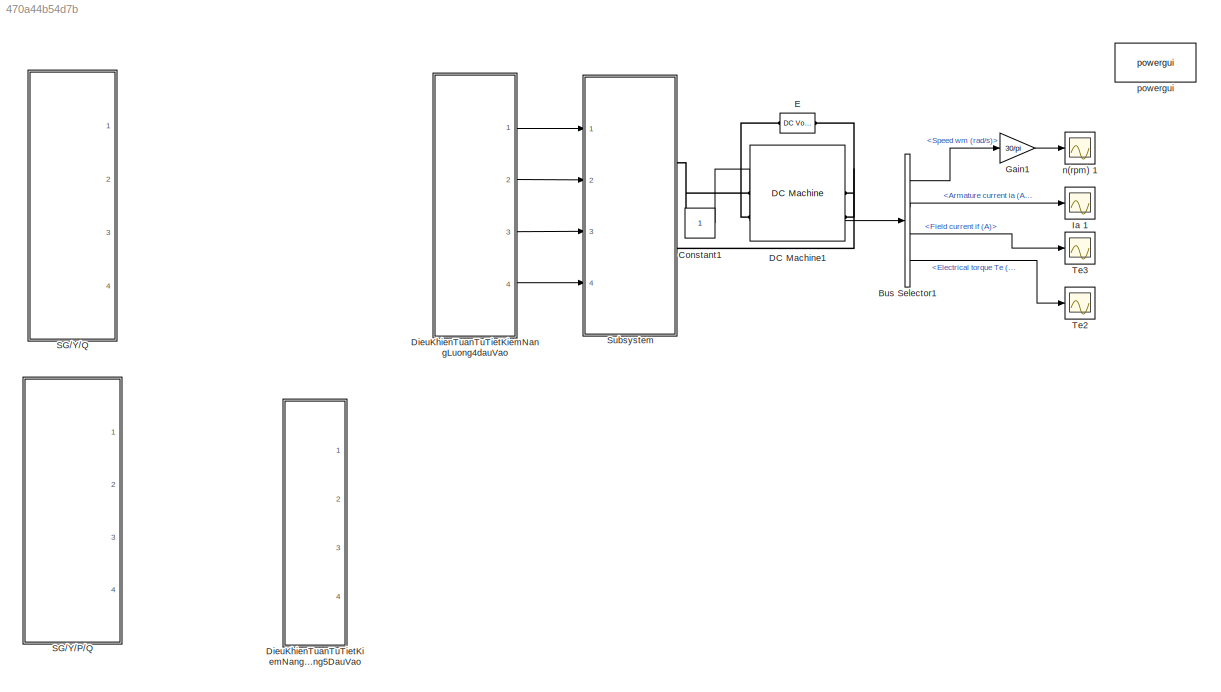
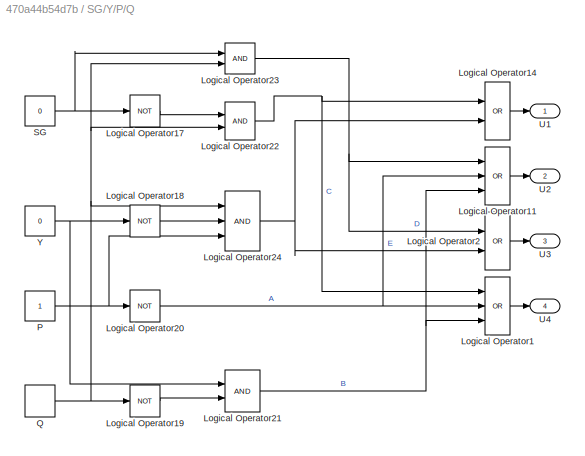
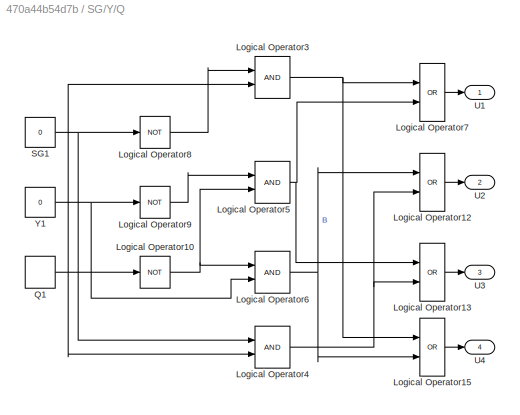
MODEL slx_470a44b54d7b
KIND model
CONFIG AbsTol = auto
CONFIG EnableMultiTasking = off
CONFIG FixedStep = auto
CONFIG MaxStep = auto
CONFIG MinStep = auto
CONFIG RelTol = 1e-3
CONFIG SampleTimeConstraint = Unconstrained
CONFIG Solver = VariableStepAuto
CONFIG SolverName = VariableStepAuto
CONFIG StartTime = 0.0
CONFIG StopTime = 10
BLOCK [BusSelector] Bus Selector1
  OutputAsBus = off
  OutputSignals = Speed wm (rad/s),Armature current ia (A),Field current if (A),Electrical torque Te (n m)
  Ports = [1, 4]
BLOCK [Constant] Constant1
BLOCK [Reference] DC Machine1  REF=powerlib/Machines/DC Machine
  Ports = [1, 1, 0, 0, 0, 2, 2]
  SourceBlock = powerlib/Machines/DC Machine
  SourceProductBaseCode = PS
  SourceProductName = Simscape Power Systems
  SourceType = DC machine
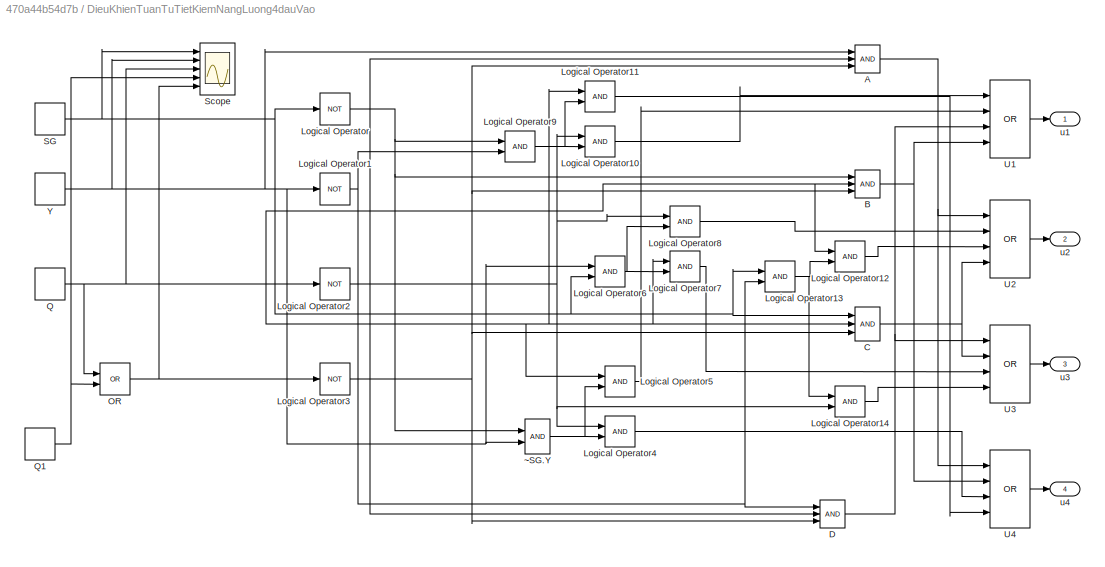
BLOCK [SubSystem] DieuKhienTuanTuTietKiemNangLuong4dauVao 
  Ports = [0, 4]
  RequestExecContextInheritance = off
BLOCK [Logic] DieuKhienTuanTuTietKiemNangLuong4dauVao /A
  AllPortsSameDT = off
  Inputs = 3
  OutDataTypeStr = boolean
  Ports = [3, 1]
BLOCK [Logic] DieuKhienTuanTuTietKiemNangLuong4dauVao /B
  AllPortsSameDT = off
  Inputs = 3
  OutDataTypeStr = boolean
  Ports = [3, 1]
BLOCK [Logic] DieuKhienTuanTuTietKiemNangLuong4dauVao /C
  AllPortsSameDT = off
  Inputs = 3
  OutDataTypeStr = boolean
  Ports = [3, 1]
BLOCK [Logic] DieuKhienTuanTuTietKiemNangLuong4dauVao /D
  AllPortsSameDT = off
  Inputs = 3
  OutDataTypeStr = boolean
  Ports = [3, 1]
BLOCK [Logic] DieuKhienTuanTuTietKiemNangLuong4dauVao /Logical Operator
  AllPortsSameDT = off
  Operator = NOT
  OutDataTypeStr = boolean
  Ports = [1, 1]
BLOCK [Logic] DieuKhienTuanTuTietKiemNangLuong4dauVao /Logical Operator1
  AllPortsSameDT = off
  Operator = NOT
  OutDataTypeStr = boolean
  Ports = [1, 1]
BLOCK [Logic] DieuKhienTuanTuTietKiemNangLuong4dauVao /Logical Operator10
  AllPortsSameDT = off
  OutDataTypeStr = boolean
  Ports = [2, 1]
BLOCK [Logic] DieuKhienTuanTuTietKiemNangLuong4dauVao /Logical Operator11
  AllPortsSameDT = off
  OutDataTypeStr = boolean
  Ports = [2, 1]
BLOCK [Logic] DieuKhienTuanTuTietKiemNangLuong4dauVao /Logical Operator12
  AllPortsSameDT = off
  OutDataTypeStr = boolean
  Ports = [2, 1]
BLOCK [Logic] DieuKhienTuanTuTietKiemNangLuong4dauVao /Logical Operator13
  AllPortsSameDT = off
  OutDataTypeStr = boolean
  Ports = [2, 1]
BLOCK [Logic] DieuKhienTuanTuTietKiemNangLuong4dauVao /Logical Operator14
  AllPortsSameDT = off
  OutDataTypeStr = boolean
  Ports = [2, 1]
BLOCK [Logic] DieuKhienTuanTuTietKiemNangLuong4dauVao /Logical Operator2
  AllPortsSameDT = off
  Operator = NOT
  OutDataTypeStr = boolean
  Ports = [1, 1]
BLOCK [Logic] DieuKhienTuanTuTietKiemNangLuong4dauVao /Logical Operator3
  AllPortsSameDT = off
  Operator = NOT
  OutDataTypeStr = boolean
  Ports = [1, 1]
BLOCK [Logic] DieuKhienTuanTuTietKiemNangLuong4dauVao /Logical Operator4
  AllPortsSameDT = off
  OutDataTypeStr = boolean
  Ports = [2, 1]
BLOCK [Logic] DieuKhienTuanTuTietKiemNangLuong4dauVao /Logical Operator5
  AllPortsSameDT = off
  OutDataTypeStr = boolean
  Ports = [2, 1]
BLOCK [Logic] DieuKhienTuanTuTietKiemNangLuong4dauVao /Logical Operator6
  AllPortsSameDT = off
  OutDataTypeStr = boolean
  Ports = [2, 1]
BLOCK [Logic] DieuKhienTuanTuTietKiemNangLuong4dauVao /Logical Operator7
  AllPortsSameDT = off
  OutDataTypeStr = boolean
  Ports = [2, 1]
BLOCK [Logic] DieuKhienTuanTuTietKiemNangLuong4dauVao /Logical Operator8
  AllPortsSameDT = off
  OutDataTypeStr = boolean
  Ports = [2, 1]
BLOCK [Logic] DieuKhienTuanTuTietKiemNangLuong4dauVao /Logical Operator9
  AllPortsSameDT = off
  OutDataTypeStr = boolean
  Ports = [2, 1]
BLOCK [Logic] DieuKhienTuanTuTietKiemNangLuong4dauVao /OR
  AllPortsSameDT = off
  IconShape = distinctive
  Operator = OR
  OutDataTypeStr = boolean
  Ports = [2, 1]
BLOCK [DiscretePulseGenerator] DieuKhienTuanTuTietKiemNangLuong4dauVao /Q
  Period = 0.002
  Ports = [0, 1]
  PulseType = Time based
  PulseWidth = 70
BLOCK [DiscretePulseGenerator] DieuKhienTuanTuTietKiemNangLuong4dauVao /Q1
  Period = 0.002
  PhaseDelay = 0.0022
  Ports = [0, 1]
  PulseType = Time based
  PulseWidth = 70
BLOCK [DiscretePulseGenerator] DieuKhienTuanTuTietKiemNangLuong4dauVao /SG
  Period = 0.008
  PhaseDelay = 0.008
  Ports = [0, 1]
  PulseType = Time based
  PulseWidth = 50
BLOCK [Scope] DieuKhienTuanTuTietKiemNangLuong4dauVao /Scope
  Floating = off
  NumInputPorts = 5
  Ports = [5]
  ScopeSpecificationString = Simulink.scopes.TimeScopeBlockCfg('CurrentConfiguration', extmgr.ConfigurationSet(extmgr.Configuration('Core','General UI',true),extmgr.Configuration('Core','Source UI',true),extmgr.Configuration('Sources','WiredSimulink',true,'DataLoggingVariableName','ScopeData1'),extmgr.Configuration('Visuals','Time Domain',true,'SerializedDisplays',{struct('MinYLimReal','-0.125','MaxYLimReal','1.08362','YLabel...<+6185ch>
BLOCK [Logic] DieuKhienTuanTuTietKiemNangLuong4dauVao /U1
  AllPortsSameDT = off
  Inputs = 4
  Operator = OR
  OutDataTypeStr = boolean
  Ports = [4, 1]
BLOCK [Logic] DieuKhienTuanTuTietKiemNangLuong4dauVao /U2
  AllPortsSameDT = off
  Inputs = 4
  Operator = OR
  OutDataTypeStr = boolean
  Ports = [4, 1]
BLOCK [Logic] DieuKhienTuanTuTietKiemNangLuong4dauVao /U3
  AllPortsSameDT = off
  Inputs = 4
  Operator = OR
  OutDataTypeStr = boolean
  Ports = [4, 1]
BLOCK [Logic] DieuKhienTuanTuTietKiemNangLuong4dauVao /U4
  AllPortsSameDT = off
  Inputs = 4
  Operator = OR
  OutDataTypeStr = boolean
  Ports = [4, 1]
BLOCK [DiscretePulseGenerator] DieuKhienTuanTuTietKiemNangLuong4dauVao /Y
  Period = 0.004
  PhaseDelay = 0.002
  Ports = [0, 1]
  PulseType = Time based
  PulseWidth = 50
BLOCK [Outport] DieuKhienTuanTuTietKiemNangLuong4dauVao /u1
  IconDisplay = Port number
BLOCK [Outport] DieuKhienTuanTuTietKiemNangLuong4dauVao /u2 
  IconDisplay = Port number
  Port = 2
BLOCK [Outport] DieuKhienTuanTuTietKiemNangLuong4dauVao /u3
  IconDisplay = Port number
  Port = 3
BLOCK [Outport] DieuKhienTuanTuTietKiemNangLuong4dauVao /u4
  IconDisplay = Port number
  Port = 4
BLOCK [Logic] DieuKhienTuanTuTietKiemNangLuong4dauVao /~SG.Y
  AllPortsSameDT = off
  OutDataTypeStr = boolean
  Ports = [2, 1]
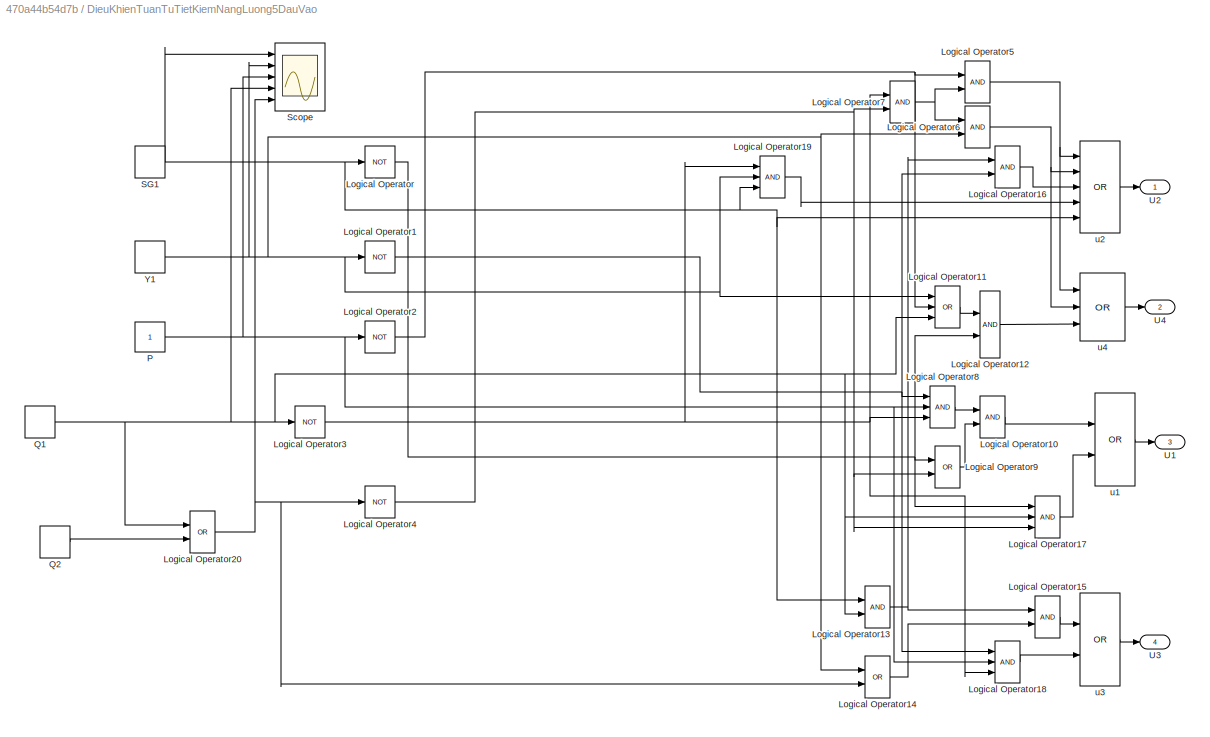
BLOCK [SubSystem] DieuKhienTuanTuTietKiemNangLuong5DauVao 
  Ports = [0, 4]
  RequestExecContextInheritance = off
BLOCK [Logic] DieuKhienTuanTuTietKiemNangLuong5DauVao /Logical Operator
  AllPortsSameDT = off
  Operator = NOT
  OutDataTypeStr = boolean
  Ports = [1, 1]
BLOCK [Logic] DieuKhienTuanTuTietKiemNangLuong5DauVao /Logical Operator1
  AllPortsSameDT = off
  Operator = NOT
  OutDataTypeStr = boolean
  Ports = [1, 1]
BLOCK [Logic] DieuKhienTuanTuTietKiemNangLuong5DauVao /Logical Operator10
  AllPortsSameDT = off
  OutDataTypeStr = boolean
  Ports = [2, 1]
BLOCK [Logic] DieuKhienTuanTuTietKiemNangLuong5DauVao /Logical Operator11
  AllPortsSameDT = off
  Inputs = 3
  Operator = OR
  OutDataTypeStr = boolean
  Ports = [3, 1]
BLOCK [Logic] DieuKhienTuanTuTietKiemNangLuong5DauVao /Logical Operator12
  AllPortsSameDT = off
  OutDataTypeStr = boolean
  Ports = [2, 1]
BLOCK [Logic] DieuKhienTuanTuTietKiemNangLuong5DauVao /Logical Operator13
  AllPortsSameDT = off
  OutDataTypeStr = boolean
  Ports = [2, 1]
BLOCK [Logic] DieuKhienTuanTuTietKiemNangLuong5DauVao /Logical Operator14
  AllPortsSameDT = off
  Operator = OR
  OutDataTypeStr = boolean
  Ports = [2, 1]
BLOCK [Logic] DieuKhienTuanTuTietKiemNangLuong5DauVao /Logical Operator15
  AllPortsSameDT = off
  OutDataTypeStr = boolean
  Ports = [2, 1]
BLOCK [Logic] DieuKhienTuanTuTietKiemNangLuong5DauVao /Logical Operator16
  AllPortsSameDT = off
  OutDataTypeStr = boolean
  Ports = [2, 1]
BLOCK [Logic] DieuKhienTuanTuTietKiemNangLuong5DauVao /Logical Operator17
  AllPortsSameDT = off
  Inputs = 3
  OutDataTypeStr = boolean
  Ports = [3, 1]
BLOCK [Logic] DieuKhienTuanTuTietKiemNangLuong5DauVao /Logical Operator18
  AllPortsSameDT = off
  Inputs = 3
  OutDataTypeStr = boolean
  Ports = [3, 1]
BLOCK [Logic] DieuKhienTuanTuTietKiemNangLuong5DauVao /Logical Operator19
  AllPortsSameDT = off
  Inputs = 3
  OutDataTypeStr = boolean
  Ports = [3, 1]
BLOCK [Logic] DieuKhienTuanTuTietKiemNangLuong5DauVao /Logical Operator2
  AllPortsSameDT = off
  Operator = NOT
  OutDataTypeStr = boolean
  Ports = [1, 1]
BLOCK [Logic] DieuKhienTuanTuTietKiemNangLuong5DauVao /Logical Operator20
  AllPortsSameDT = off
  Operator = OR
  OutDataTypeStr = boolean
  Ports = [2, 1]
BLOCK [Logic] DieuKhienTuanTuTietKiemNangLuong5DauVao /Logical Operator3
  AllPortsSameDT = off
  Operator = NOT
  OutDataTypeStr = boolean
  Ports = [1, 1]
BLOCK [Logic] DieuKhienTuanTuTietKiemNangLuong5DauVao /Logical Operator4
  AllPortsSameDT = off
  Operator = NOT
  OutDataTypeStr = boolean
  Ports = [1, 1]
BLOCK [Logic] DieuKhienTuanTuTietKiemNangLuong5DauVao /Logical Operator5
  AllPortsSameDT = off
  OutDataTypeStr = boolean
  Ports = [2, 1]
BLOCK [Logic] DieuKhienTuanTuTietKiemNangLuong5DauVao /Logical Operator6
  AllPortsSameDT = off
  OutDataTypeStr = boolean
  Ports = [2, 1]
BLOCK [Logic] DieuKhienTuanTuTietKiemNangLuong5DauVao /Logical Operator7
  AllPortsSameDT = off
  OutDataTypeStr = boolean
  Ports = [2, 1]
BLOCK [Logic] DieuKhienTuanTuTietKiemNangLuong5DauVao /Logical Operator8
  AllPortsSameDT = off
  Inputs = 3
  OutDataTypeStr = boolean
  Ports = [3, 1]
BLOCK [Logic] DieuKhienTuanTuTietKiemNangLuong5DauVao /Logical Operator9
  AllPortsSameDT = off
  Operator = OR
  OutDataTypeStr = boolean
  Ports = [2, 1]
BLOCK [Constant] DieuKhienTuanTuTietKiemNangLuong5DauVao /P
BLOCK [DiscretePulseGenerator] DieuKhienTuanTuTietKiemNangLuong5DauVao /Q1
  Period = 0.002
  Ports = [0, 1]
  PulseType = Time based
  PulseWidth = 70
BLOCK [DiscretePulseGenerator] DieuKhienTuanTuTietKiemNangLuong5DauVao /Q2
  Period = 0.002
  PhaseDelay = 0.0021
  Ports = [0, 1]
  PulseType = Time based
  PulseWidth = 70
BLOCK [DiscretePulseGenerator] DieuKhienTuanTuTietKiemNangLuong5DauVao /SG1
  Period = 0.008
  PhaseDelay = 0.008
  Ports = [0, 1]
  PulseType = Time based
  PulseWidth = 50
BLOCK [Scope] DieuKhienTuanTuTietKiemNangLuong5DauVao /Scope
  Floating = off
  NumInputPorts = 5
  Ports = [5]
  ScopeSpecificationString = Simulink.scopes.TimeScopeBlockCfg('CurrentConfiguration', extmgr.ConfigurationSet(extmgr.Configuration('Core','General UI',true),extmgr.Configuration('Core','Source UI',true),extmgr.Configuration('Sources','WiredSimulink',true,'DataLoggingVariableName','ScopeData2'),extmgr.Configuration('Visuals','Time Domain',true,'SerializedDisplays',{struct('MinYLimReal','-0.125','MaxYLimReal','1.08362','YLabel...<+3498ch>
BLOCK [Outport] DieuKhienTuanTuTietKiemNangLuong5DauVao /U1
  IconDisplay = Port number
  Port = 3
BLOCK [Outport] DieuKhienTuanTuTietKiemNangLuong5DauVao /U2
  IconDisplay = Port number
BLOCK [Outport] DieuKhienTuanTuTietKiemNangLuong5DauVao /U3
  IconDisplay = Port number
  Port = 4
BLOCK [Outport] DieuKhienTuanTuTietKiemNangLuong5DauVao /U4
  IconDisplay = Port number
  Port = 2
BLOCK [DiscretePulseGenerator] DieuKhienTuanTuTietKiemNangLuong5DauVao /Y1
  Period = 0.004
  PhaseDelay = 0.002
  Ports = [0, 1]
  PulseType = Time based
  PulseWidth = 50
BLOCK [Logic] DieuKhienTuanTuTietKiemNangLuong5DauVao /u1
  AllPortsSameDT = off
  Operator = OR
  OutDataTypeStr = boolean
  Ports = [2, 1]
BLOCK [Logic] DieuKhienTuanTuTietKiemNangLuong5DauVao /u2
  AllPortsSameDT = off
  Inputs = 5
  Operator = OR
  OutDataTypeStr = boolean
  Ports = [5, 1]
BLOCK [Logic] DieuKhienTuanTuTietKiemNangLuong5DauVao /u3
  AllPortsSameDT = off
  Operator = OR
  OutDataTypeStr = boolean
  Ports = [2, 1]
BLOCK [Logic] DieuKhienTuanTuTietKiemNangLuong5DauVao /u4
  AllPortsSameDT = off
  Inputs = 3
  Operator = OR
  OutDataTypeStr = boolean
  Ports = [3, 1]
BLOCK [Reference] E  REF=powerlib/Electrical
Sources/DC Voltage Source
  Ports = [0, 0, 0, 0, 0, 1, 1]
  SourceBlock = powerlib/Electrical\nSources/DC Voltage Source
  SourceProductBaseCode = PS
  SourceProductName = Simscape Power Systems
  SourceType = DC Voltage Source
BLOCK [Gain] Gain1
  Gain = 30/pi
  OutDataTypeStr = Inherit: Inherit via internal rule
  ParamDataTypeStr = Inherit: Inherit via internal rule
  SaturateOnIntegerOverflow = off
BLOCK [Scope] Ia 1
  Floating = off
  NumInputPorts = 1
  Ports = [1]
  ScopeSpecificationString = Simulink.scopes.TimeScopeBlockCfg('CurrentConfiguration', extmgr.ConfigurationSet(extmgr.Configuration('Core','General UI',true),extmgr.Configuration('Core','Source UI',true),extmgr.Configuration('Sources','WiredSimulink',true,'DataLoggingVariableName','ScopeData1'),extmgr.Configuration('Visuals','Time Domain',true,'SerializedDisplays',{struct('MinYLimReal','-1.91047','MaxYLimReal','17.19427','YLa...<+1420ch>
BLOCK [SubSystem] SG//Y//P//Q
  Ports = [0, 4]
  RequestExecContextInheritance = off
BLOCK [Logic] SG//Y//P//Q/Logical Operator1
  AllPortsSameDT = off
  Inputs = 3
  Operator = OR
  OutDataTypeStr = boolean
  Ports = [3, 1]
BLOCK [Logic] SG//Y//P//Q/Logical Operator11
  AllPortsSameDT = off
  Inputs = 3
  Operator = OR
  OutDataTypeStr = boolean
  Ports = [3, 1]
BLOCK [Logic] SG//Y//P//Q/Logical Operator14
  AllPortsSameDT = off
  Operator = OR
  OutDataTypeStr = boolean
  Ports = [2, 1]
BLOCK [Logic] SG//Y//P//Q/Logical Operator17
  AllPortsSameDT = off
  Operator = NOT
  OutDataTypeStr = boolean
  Ports = [1, 1]
BLOCK [Logic] SG//Y//P//Q/Logical Operator18
  AllPortsSameDT = off
  Operator = NOT
  OutDataTypeStr = boolean
  Ports = [1, 1]
BLOCK [Logic] SG//Y//P//Q/Logical Operator19
  AllPortsSameDT = off
  Operator = NOT
  OutDataTypeStr = boolean
  Ports = [1, 1]
BLOCK [Logic] SG//Y//P//Q/Logical Operator2
  AllPortsSameDT = off
  Operator = OR
  OutDataTypeStr = boolean
  Ports = [2, 1]
BLOCK [Logic] SG//Y//P//Q/Logical Operator20
  AllPortsSameDT = off
  Operator = NOT
  OutDataTypeStr = boolean
  Ports = [1, 1]
BLOCK [Logic] SG//Y//P//Q/Logical Operator21
  AllPortsSameDT = off
  OutDataTypeStr = boolean
  Ports = [2, 1]
BLOCK [Logic] SG//Y//P//Q/Logical Operator22
  AllPortsSameDT = off
  OutDataTypeStr = boolean
  Ports = [2, 1]
BLOCK [Logic] SG//Y//P//Q/Logical Operator23
  AllPortsSameDT = off
  OutDataTypeStr = boolean
  Ports = [2, 1]
BLOCK [Logic] SG//Y//P//Q/Logical Operator24
  AllPortsSameDT = off
  Inputs = 3
  OutDataTypeStr = boolean
  Ports = [3, 1]
BLOCK [Constant] SG//Y//P//Q/P
BLOCK [DiscretePulseGenerator] SG//Y//P//Q/Q
  Period = 0.002
  Ports = [0, 1]
  PulseType = Time based
  PulseWidth = 80
BLOCK [Constant] SG//Y//P//Q/SG
  Value = 0
BLOCK [Outport] SG//Y//P//Q/U1
  IconDisplay = Port number
BLOCK [Outport] SG//Y//P//Q/U2
  IconDisplay = Port number
  Port = 2
BLOCK [Outport] SG//Y//P//Q/U3
  IconDisplay = Port number
  Port = 3
BLOCK [Outport] SG//Y//P//Q/U4
  IconDisplay = Port number
  Port = 4
BLOCK [Constant] SG//Y//P//Q/Y
  Value = 0
BLOCK [SubSystem] SG//Y//Q
  Ports = [0, 4]
  RequestExecContextInheritance = off
BLOCK [Logic] SG//Y//Q/Logical Operator10
  AllPortsSameDT = off
  Operator = NOT
  OutDataTypeStr = boolean
  Ports = [1, 1]
BLOCK [Logic] SG//Y//Q/Logical Operator12
  AllPortsSameDT = off
  Operator = OR
  OutDataTypeStr = boolean
  Ports = [2, 1]
BLOCK [Logic] SG//Y//Q/Logical Operator13
  AllPortsSameDT = off
  Operator = OR
  OutDataTypeStr = boolean
  Ports = [2, 1]
BLOCK [Logic] SG//Y//Q/Logical Operator15
  AllPortsSameDT = off
  Operator = OR
  OutDataTypeStr = boolean
  Ports = [2, 1]
BLOCK [Logic] SG//Y//Q/Logical Operator3
  AllPortsSameDT = off
  OutDataTypeStr = boolean
  Ports = [2, 1]
BLOCK [Logic] SG//Y//Q/Logical Operator4
  AllPortsSameDT = off
  OutDataTypeStr = boolean
  Ports = [2, 1]
BLOCK [Logic] SG//Y//Q/Logical Operator5
  AllPortsSameDT = off
  OutDataTypeStr = boolean
  Ports = [2, 1]
BLOCK [Logic] SG//Y//Q/Logical Operator6
  AllPortsSameDT = off
  OutDataTypeStr = boolean
  Ports = [2, 1]
BLOCK [Logic] SG//Y//Q/Logical Operator7
  AllPortsSameDT = off
  Operator = OR
  OutDataTypeStr = boolean
  Ports = [2, 1]
BLOCK [Logic] SG//Y//Q/Logical Operator8
  AllPortsSameDT = off
  Operator = NOT
  OutDataTypeStr = boolean
  Ports = [1, 1]
BLOCK [Logic] SG//Y//Q/Logical Operator9
  AllPortsSameDT = off
  Operator = NOT
  OutDataTypeStr = boolean
  Ports = [1, 1]
BLOCK [DiscretePulseGenerator] SG//Y//Q/Q1
  Period = 0.002
  Ports = [0, 1]
  PulseType = Time based
  PulseWidth = 60
BLOCK [Constant] SG//Y//Q/SG1
  Value = 0
BLOCK [Outport] SG//Y//Q/U1
  IconDisplay = Port number
BLOCK [Outport] SG//Y//Q/U2
  IconDisplay = Port number
  Port = 2
BLOCK [Outport] SG//Y//Q/U3
  IconDisplay = Port number
  Port = 3
BLOCK [Outport] SG//Y//Q/U4
  IconDisplay = Port number
  Port = 4
BLOCK [Constant] SG//Y//Q/Y1
  Value = 0
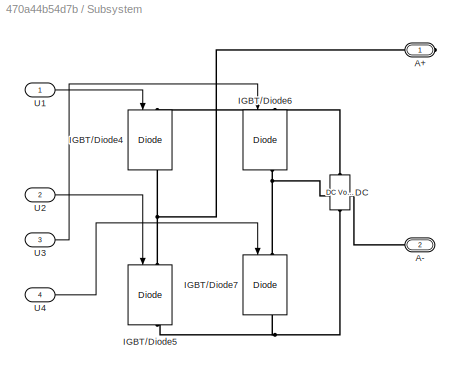
BLOCK [SubSystem] Subsystem
  Ports = [4, 0, 0, 0, 0, 0, 2]
  RequestExecContextInheritance = off
BLOCK [PMIOPort] Subsystem/A+
  Side = Right
BLOCK [PMIOPort] Subsystem/A-
  Port = 2
  Side = Right
BLOCK [Reference] Subsystem/DC  REF=powerlib/Electrical
Sources/DC Voltage Source
  Ports = [0, 0, 0, 0, 0, 1, 1]
  SourceBlock = powerlib/Electrical\nSources/DC Voltage Source
  SourceProductBaseCode = PS
  SourceProductName = Simscape Power Systems
  SourceType = DC Voltage Source
BLOCK [Reference] Subsystem/IGBT//Diode4  REF=powerlib/Power
Electronics/IGBT//Diode
  Ports = [1, 1, 0, 0, 0, 1, 1]
  SourceBlock = powerlib/Power\nElectronics/IGBT//Diode
  SourceProductBaseCode = PS
  SourceProductName = Simscape Electrical
  SourceType = IGBT/Diode
BLOCK [Reference] Subsystem/IGBT//Diode5  REF=powerlib/Power
Electronics/IGBT//Diode
  Ports = [1, 1, 0, 0, 0, 1, 1]
  SourceBlock = powerlib/Power\nElectronics/IGBT//Diode
  SourceProductBaseCode = PS
  SourceProductName = Simscape Electrical
  SourceType = IGBT/Diode
BLOCK [Reference] Subsystem/IGBT//Diode6  REF=powerlib/Power
Electronics/IGBT//Diode
  Ports = [1, 1, 0, 0, 0, 1, 1]
  SourceBlock = powerlib/Power\nElectronics/IGBT//Diode
  SourceProductBaseCode = PS
  SourceProductName = Simscape Electrical
  SourceType = IGBT/Diode
BLOCK [Reference] Subsystem/IGBT//Diode7  REF=powerlib/Power
Electronics/IGBT//Diode
  Ports = [1, 1, 0, 0, 0, 1, 1]
  SourceBlock = powerlib/Power\nElectronics/IGBT//Diode
  SourceProductBaseCode = PS
  SourceProductName = Simscape Electrical
  SourceType = IGBT/Diode
BLOCK [Inport] Subsystem/U1
  IconDisplay = Port number
BLOCK [Inport] Subsystem/U2
  IconDisplay = Port number
  Port = 2
BLOCK [Inport] Subsystem/U3
  IconDisplay = Port number
  Port = 3
BLOCK [Inport] Subsystem/U4
  IconDisplay = Port number
  Port = 4
BLOCK [Scope] Te2
  Floating = off
  NumInputPorts = 1
  Ports = [1]
  ScopeSpecificationString = Simulink.scopes.TimeScopeBlockCfg('CurrentConfiguration', extmgr.ConfigurationSet(extmgr.Configuration('Core','General UI',true),extmgr.Configuration('Core','Source UI',true),extmgr.Configuration('Sources','WiredSimulink',true,'DataLoggingVariableName','ScopeData2'),extmgr.Configuration('Visuals','Time Domain',true,'SerializedDisplays',{struct('MinYLimReal','-1.93214','MaxYLimReal','17.38926','YLa...<+1422ch>
BLOCK [Scope] Te3
  Floating = off
  NumInputPorts = 1
  Ports = [1]
  ScopeSpecificationString = Simulink.scopes.TimeScopeBlockCfg('CurrentConfiguration', extmgr.ConfigurationSet(extmgr.Configuration('Core','General UI',true),extmgr.Configuration('Core','Source UI',true),extmgr.Configuration('Sources','WiredSimulink',true,'DataLoggingVariableName','ScopeData3'),extmgr.Configuration('Visuals','Time Domain',true,'SerializedDisplays',{struct('MinYLimReal','1.066477070742966','MaxYLimReal','1.066...<+1488ch>
BLOCK [Scope] n(rpm) 1
  Floating = off
  NumInputPorts = 1
  Ports = [1]
  ScopeSpecificationString = Simulink.scopes.TimeScopeBlockCfg('CurrentConfiguration', extmgr.ConfigurationSet(extmgr.Configuration('Core','General UI',true),extmgr.Configuration('Core','Source UI',true),extmgr.Configuration('Sources','WiredSimulink',true),extmgr.Configuration('Visuals','Time Domain',true,'SerializedDisplays',{struct('MinYLimReal','-137.32215','MaxYLimReal','25.86835','YLabelReal','','MinYLimMag',' 0.00000','...<+1390ch>
BLOCK [Reference] powergui  REF=powerlib/powergui
  Ports = []
  Priority = 1
  SourceBlock = powerlib/powergui
  SourceProductBaseCode = PS
  SourceProductName = Simscape Electrical
  SourceType = PSB option menu block
LINE Bus Selector1:1 -> Gain1:1
LINE Bus Selector1:2 -> Ia 1:1
LINE Bus Selector1:3 -> Te3:1
LINE Bus Selector1:4 -> Te2:1
LINE Constant1:1 -> DC Machine1:1
LINE DC Machine1:1 -> Bus Selector1:1
NET DieuKhienTuanTuTietKiemNangLuong4dauVao /A:1 -> DieuKhienTuanTuTietKiemNangLuong4dauVao /U2:1, DieuKhienTuanTuTietKiemNangLuong4dauVao /U4:1
NET DieuKhienTuanTuTietKiemNangLuong4dauVao /B:1 -> DieuKhienTuanTuTietKiemNangLuong4dauVao /U1:4, DieuKhienTuanTuTietKiemNangLuong4dauVao /U4:2
NET DieuKhienTuanTuTietKiemNangLuong4dauVao /C:1 -> DieuKhienTuanTuTietKiemNangLuong4dauVao /U2:4, DieuKhienTuanTuTietKiemNangLuong4dauVao /U3:2
NET DieuKhienTuanTuTietKiemNangLuong4dauVao /D:1 -> DieuKhienTuanTuTietKiemNangLuong4dauVao /U1:3, DieuKhienTuanTuTietKiemNangLuong4dauVao /U3:1
LINE DieuKhienTuanTuTietKiemNangLuong4dauVao /Logical Operator10:1 -> DieuKhienTuanTuTietKiemNangLuong4dauVao /U1:1
LINE DieuKhienTuanTuTietKiemNangLuong4dauVao /Logical Operator11:1 -> DieuKhienTuanTuTietKiemNangLuong4dauVao /U4:4
LINE DieuKhienTuanTuTietKiemNangLuong4dauVao /Logical Operator12:1 -> DieuKhienTuanTuTietKiemNangLuong4dauVao /U2:3
NET DieuKhienTuanTuTietKiemNangLuong4dauVao /Logical Operator13:1 -> DieuKhienTuanTuTietKiemNangLuong4dauVao /Logical Operator12:2, DieuKhienTuanTuTietKiemNangLuong4dauVao /Logical Operator14:1
LINE DieuKhienTuanTuTietKiemNangLuong4dauVao /Logical Operator14:1 -> DieuKhienTuanTuTietKiemNangLuong4dauVao /U3:4
NET DieuKhienTuanTuTietKiemNangLuong4dauVao /Logical Operator1:1 -> DieuKhienTuanTuTietKiemNangLuong4dauVao /D:1, DieuKhienTuanTuTietKiemNangLuong4dauVao /Logical Operator13:2, DieuKhienTuanTuTietKiemNangLuong4dauVao /Logical Operator9:2
NET DieuKhienTuanTuTietKiemNangLuong4dauVao /Logical Operator2:1 -> DieuKhienTuanTuTietKiemNangLuong4dauVao /A:2, DieuKhienTuanTuTietKiemNangLuong4dauVao /D:2, DieuKhienTuanTuTietKiemNangLuong4dauVao /Logical Operator10:1, DieuKhienTuanTuTietKiemNangLuong4dauVao /Logical Operator14:2, DieuKhienTuanTuTietKiemNangLuong4dauVao /Logical Operator4:1, DieuKhienTuanTuTietKiemNangLuong4dauVao /Logical Operator8:1
NET DieuKhienTuanTuTietKiemNangLuong4dauVao /Logical Operator3:1 -> DieuKhienTuanTuTietKiemNangLuong4dauVao /A:3, DieuKhienTuanTuTietKiemNangLuong4dauVao /B:3, DieuKhienTuanTuTietKiemNangLuong4dauVao /C:3, DieuKhienTuanTuTietKiemNangLuong4dauVao /D:3
LINE DieuKhienTuanTuTietKiemNangLuong4dauVao /Logical Operator4:1 -> DieuKhienTuanTuTietKiemNangLuong4dauVao /U4:3
LINE DieuKhienTuanTuTietKiemNangLuong4dauVao /Logical Operator5:1 -> DieuKhienTuanTuTietKiemNangLuong4dauVao /U1:2
NET DieuKhienTuanTuTietKiemNangLuong4dauVao /Logical Operator6:1 -> DieuKhienTuanTuTietKiemNangLuong4dauVao /Logical Operator7:2, DieuKhienTuanTuTietKiemNangLuong4dauVao /Logical Operator8:2
LINE DieuKhienTuanTuTietKiemNangLuong4dauVao /Logical Operator7:1 -> DieuKhienTuanTuTietKiemNangLuong4dauVao /U3:3
LINE DieuKhienTuanTuTietKiemNangLuong4dauVao /Logical Operator8:1 -> DieuKhienTuanTuTietKiemNangLuong4dauVao /U2:2
NET DieuKhienTuanTuTietKiemNangLuong4dauVao /Logical Operator9:1 -> DieuKhienTuanTuTietKiemNangLuong4dauVao /Logical Operator10:2, DieuKhienTuanTuTietKiemNangLuong4dauVao /Logical Operator11:2
NET DieuKhienTuanTuTietKiemNangLuong4dauVao /Logical Operator:1 -> DieuKhienTuanTuTietKiemNangLuong4dauVao /B:1, DieuKhienTuanTuTietKiemNangLuong4dauVao /Logical Operator9:1, DieuKhienTuanTuTietKiemNangLuong4dauVao /~SG.Y:1
NET DieuKhienTuanTuTietKiemNangLuong4dauVao /OR:1 -> DieuKhienTuanTuTietKiemNangLuong4dauVao /Logical Operator3:1, DieuKhienTuanTuTietKiemNangLuong4dauVao /Scope:5
NET DieuKhienTuanTuTietKiemNangLuong4dauVao /Q1:1 -> DieuKhienTuanTuTietKiemNangLuong4dauVao /OR:2, DieuKhienTuanTuTietKiemNangLuong4dauVao /Scope:4
NET DieuKhienTuanTuTietKiemNangLuong4dauVao /Q:1 -> DieuKhienTuanTuTietKiemNangLuong4dauVao /B:2, DieuKhienTuanTuTietKiemNangLuong4dauVao /C:2, DieuKhienTuanTuTietKiemNangLuong4dauVao /Logical Operator11:1, DieuKhienTuanTuTietKiemNangLuong4dauVao /Logical Operator12:1, DieuKhienTuanTuTietKiemNangLuong4dauVao /Logical Operator2:1, DieuKhienTuanTuTietKiemNangLuong4dauVao /Logical Operator5:1, DieuKhienTuanTuTietKiemNangLuong4dauVao /Logical Operator7:1, DieuKhienTuanTuTietKiemNangLuong4dauVao /OR:1, DieuKhienTuanTuTietKiemNangLuong4dauVao /Scope:3
NET DieuKhienTuanTuTietKiemNangLuong4dauVao /SG:1 -> DieuKhienTuanTuTietKiemNangLuong4dauVao /C:1, DieuKhienTuanTuTietKiemNangLuong4dauVao /Logical Operator13:1, DieuKhienTuanTuTietKiemNangLuong4dauVao /Logical Operator6:2, DieuKhienTuanTuTietKiemNangLuong4dauVao /Logical Operator:1, DieuKhienTuanTuTietKiemNangLuong4dauVao /Scope:1
LINE DieuKhienTuanTuTietKiemNangLuong4dauVao /U1:1 -> DieuKhienTuanTuTietKiemNangLuong4dauVao /u1:1
LINE DieuKhienTuanTuTietKiemNangLuong4dauVao /U2:1 -> DieuKhienTuanTuTietKiemNangLuong4dauVao /u2 :1
LINE DieuKhienTuanTuTietKiemNangLuong4dauVao /U3:1 -> DieuKhienTuanTuTietKiemNangLuong4dauVao /u3:1
LINE DieuKhienTuanTuTietKiemNangLuong4dauVao /U4:1 -> DieuKhienTuanTuTietKiemNangLuong4dauVao /u4:1
NET DieuKhienTuanTuTietKiemNangLuong4dauVao /Y:1 -> DieuKhienTuanTuTietKiemNangLuong4dauVao /A:1, DieuKhienTuanTuTietKiemNangLuong4dauVao /Logical Operator1:1, DieuKhienTuanTuTietKiemNangLuong4dauVao /Logical Operator6:1, DieuKhienTuanTuTietKiemNangLuong4dauVao /Scope:2, DieuKhienTuanTuTietKiemNangLuong4dauVao /~SG.Y:2
NET DieuKhienTuanTuTietKiemNangLuong4dauVao /~SG.Y:1 -> DieuKhienTuanTuTietKiemNangLuong4dauVao /Logical Operator4:2, DieuKhienTuanTuTietKiemNangLuong4dauVao /Logical Operator5:2
LINE DieuKhienTuanTuTietKiemNangLuong4dauVao :1 -> Subsystem:1
LINE DieuKhienTuanTuTietKiemNangLuong4dauVao :2 -> Subsystem:2
LINE DieuKhienTuanTuTietKiemNangLuong4dauVao :3 -> Subsystem:3
LINE DieuKhienTuanTuTietKiemNangLuong4dauVao :4 -> Subsystem:4
LINE DieuKhienTuanTuTietKiemNangLuong5DauVao /Logical Operator10:1 -> DieuKhienTuanTuTietKiemNangLuong5DauVao /u1:1
LINE DieuKhienTuanTuTietKiemNangLuong5DauVao /Logical Operator11:1 -> DieuKhienTuanTuTietKiemNangLuong5DauVao /Logical Operator12:1
LINE DieuKhienTuanTuTietKiemNangLuong5DauVao /Logical Operator12:1 -> DieuKhienTuanTuTietKiemNangLuong5DauVao /u4:3
NET DieuKhienTuanTuTietKiemNangLuong5DauVao /Logical Operator13:1 -> DieuKhienTuanTuTietKiemNangLuong5DauVao /Logical Operator15:1, DieuKhienTuanTuTietKiemNangLuong5DauVao /Logical Operator16:1
LINE DieuKhienTuanTuTietKiemNangLuong5DauVao /Logical Operator14:1 -> DieuKhienTuanTuTietKiemNangLuong5DauVao /Logical Operator15:2
LINE DieuKhienTuanTuTietKiemNangLuong5DauVao /Logical Operator15:1 -> DieuKhienTuanTuTietKiemNangLuong5DauVao /u3:1
LINE DieuKhienTuanTuTietKiemNangLuong5DauVao /Logical Operator16:1 -> DieuKhienTuanTuTietKiemNangLuong5DauVao /u2:3
LINE DieuKhienTuanTuTietKiemNangLuong5DauVao /Logical Operator17:1 -> DieuKhienTuanTuTietKiemNangLuong5DauVao /u1:2
LINE DieuKhienTuanTuTietKiemNangLuong5DauVao /Logical Operator18:1 -> DieuKhienTuanTuTietKiemNangLuong5DauVao /u3:2
LINE DieuKhienTuanTuTietKiemNangLuong5DauVao /Logical Operator19:1 -> DieuKhienTuanTuTietKiemNangLuong5DauVao /u2:4
NET DieuKhienTuanTuTietKiemNangLuong5DauVao /Logical Operator1:1 -> DieuKhienTuanTuTietKiemNangLuong5DauVao /Logical Operator16:2, DieuKhienTuanTuTietKiemNangLuong5DauVao /Logical Operator18:1, DieuKhienTuanTuTietKiemNangLuong5DauVao /Logical Operator8:1
NET DieuKhienTuanTuTietKiemNangLuong5DauVao /Logical Operator20:1 -> DieuKhienTuanTuTietKiemNangLuong5DauVao /Logical Operator14:2, DieuKhienTuanTuTietKiemNangLuong5DauVao /Logical Operator4:1, DieuKhienTuanTuTietKiemNangLuong5DauVao /Scope:5
NET DieuKhienTuanTuTietKiemNangLuong5DauVao /Logical Operator2:1 -> DieuKhienTuanTuTietKiemNangLuong5DauVao /Logical Operator11:2, DieuKhienTuanTuTietKiemNangLuong5DauVao /Logical Operator5:1
NET DieuKhienTuanTuTietKiemNangLuong5DauVao /Logical Operator3:1 -> DieuKhienTuanTuTietKiemNangLuong5DauVao /Logical Operator18:3, DieuKhienTuanTuTietKiemNangLuong5DauVao /Logical Operator19:1, DieuKhienTuanTuTietKiemNangLuong5DauVao /Logical Operator7:1, DieuKhienTuanTuTietKiemNangLuong5DauVao /Logical Operator8:3
NET DieuKhienTuanTuTietKiemNangLuong5DauVao /Logical Operator4:1 -> DieuKhienTuanTuTietKiemNangLuong5DauVao /Logical Operator17:3, DieuKhienTuanTuTietKiemNangLuong5DauVao /Logical Operator7:2, DieuKhienTuanTuTietKiemNangLuong5DauVao /Logical Operator9:2
NET DieuKhienTuanTuTietKiemNangLuong5DauVao /Logical Operator5:1 -> DieuKhienTuanTuTietKiemNangLuong5DauVao /u2:1, DieuKhienTuanTuTietKiemNangLuong5DauVao /u4:1
NET DieuKhienTuanTuTietKiemNangLuong5DauVao /Logical Operator6:1 -> DieuKhienTuanTuTietKiemNangLuong5DauVao /u2:2, DieuKhienTuanTuTietKiemNangLuong5DauVao /u4:2
NET DieuKhienTuanTuTietKiemNangLuong5DauVao /Logical Operator7:1 -> DieuKhienTuanTuTietKiemNangLuong5DauVao /Logical Operator5:2, DieuKhienTuanTuTietKiemNangLuong5DauVao /Logical Operator6:1
LINE DieuKhienTuanTuTietKiemNangLuong5DauVao /Logical Operator8:1 -> DieuKhienTuanTuTietKiemNangLuong5DauVao /Logical Operator10:1
LINE DieuKhienTuanTuTietKiemNangLuong5DauVao /Logical Operator9:1 -> DieuKhienTuanTuTietKiemNangLuong5DauVao /Logical Operator10:2
NET DieuKhienTuanTuTietKiemNangLuong5DauVao /Logical Operator:1 -> DieuKhienTuanTuTietKiemNangLuong5DauVao /Logical Operator12:2, DieuKhienTuanTuTietKiemNangLuong5DauVao /Logical Operator17:1, DieuKhienTuanTuTietKiemNangLuong5DauVao /Logical Operator9:1
NET DieuKhienTuanTuTietKiemNangLuong5DauVao /P:1 -> DieuKhienTuanTuTietKiemNangLuong5DauVao /Logical Operator18:2, DieuKhienTuanTuTietKiemNangLuong5DauVao /Logical Operator2:1, DieuKhienTuanTuTietKiemNangLuong5DauVao /Logical Operator8:2, DieuKhienTuanTuTietKiemNangLuong5DauVao /Scope:3
NET DieuKhienTuanTuTietKiemNangLuong5DauVao /Q1:1 -> DieuKhienTuanTuTietKiemNangLuong5DauVao /Logical Operator11:3, DieuKhienTuanTuTietKiemNangLuong5DauVao /Logical Operator13:2, DieuKhienTuanTuTietKiemNangLuong5DauVao /Logical Operator17:2, DieuKhienTuanTuTietKiemNangLuong5DauVao /Logical Operator20:1, DieuKhienTuanTuTietKiemNangLuong5DauVao /Logical Operator3:1, DieuKhienTuanTuTietKiemNangLuong5DauVao /Scope:4
LINE DieuKhienTuanTuTietKiemNangLuong5DauVao /Q2:1 -> DieuKhienTuanTuTietKiemNangLuong5DauVao /Logical Operator20:2
NET DieuKhienTuanTuTietKiemNangLuong5DauVao /SG1:1 -> DieuKhienTuanTuTietKiemNangLuong5DauVao /Logical Operator13:1, DieuKhienTuanTuTietKiemNangLuong5DauVao /Logical Operator19:3, DieuKhienTuanTuTietKiemNangLuong5DauVao /Logical Operator:1, DieuKhienTuanTuTietKiemNangLuong5DauVao /Scope:1, DieuKhienTuanTuTietKiemNangLuong5DauVao /u2:5
NET DieuKhienTuanTuTietKiemNangLuong5DauVao /Y1:1 -> DieuKhienTuanTuTietKiemNangLuong5DauVao /Logical Operator11:1, DieuKhienTuanTuTietKiemNangLuong5DauVao /Logical Operator14:1, DieuKhienTuanTuTietKiemNangLuong5DauVao /Logical Operator19:2, DieuKhienTuanTuTietKiemNangLuong5DauVao /Logical Operator1:1, DieuKhienTuanTuTietKiemNangLuong5DauVao /Logical Operator6:2, DieuKhienTuanTuTietKiemNangLuong5DauVao /Scope:2
LINE DieuKhienTuanTuTietKiemNangLuong5DauVao /u1:1 -> DieuKhienTuanTuTietKiemNangLuong5DauVao /U1:1
LINE DieuKhienTuanTuTietKiemNangLuong5DauVao /u2:1 -> DieuKhienTuanTuTietKiemNangLuong5DauVao /U2:1
LINE DieuKhienTuanTuTietKiemNangLuong5DauVao /u3:1 -> DieuKhienTuanTuTietKiemNangLuong5DauVao /U3:1
LINE DieuKhienTuanTuTietKiemNangLuong5DauVao /u4:1 -> DieuKhienTuanTuTietKiemNangLuong5DauVao /U4:1
LINE Gain1:1 -> n(rpm) 1:1
LINE SG//Y//P//Q/Logical Operator11:1 -> SG//Y//P//Q/U2:1
LINE SG//Y//P//Q/Logical Operator14:1 -> SG//Y//P//Q/U1:1
LINE SG//Y//P//Q/Logical Operator17:1 -> SG//Y//P//Q/Logical Operator22:1
LINE SG//Y//P//Q/Logical Operator18:1 -> SG//Y//P//Q/Logical Operator24:2
LINE SG//Y//P//Q/Logical Operator19:1 -> SG//Y//P//Q/Logical Operator21:2
LINE SG//Y//P//Q/Logical Operator1:1 -> SG//Y//P//Q/U4:1
NET SG//Y//P//Q/Logical Operator20:1 -> SG//Y//P//Q/Logical Operator11:2, SG//Y//P//Q/Logical Operator1:2
NET SG//Y//P//Q/Logical Operator21:1 -> SG//Y//P//Q/Logical Operator11:3, SG//Y//P//Q/Logical Operator1:3
NET SG//Y//P//Q/Logical Operator22:1 -> SG//Y//P//Q/Logical Operator14:1, SG//Y//P//Q/Logical Operator1:1
NET SG//Y//P//Q/Logical Operator23:1 -> SG//Y//P//Q/Logical Operator11:1, SG//Y//P//Q/Logical Operator2:1
NET SG//Y//P//Q/Logical Operator24:1 -> SG//Y//P//Q/Logical Operator14:2, SG//Y//P//Q/Logical Operator2:2
LINE SG//Y//P//Q/Logical Operator2:1 -> SG//Y//P//Q/U3:1
NET SG//Y//P//Q/P:1 -> SG//Y//P//Q/Logical Operator20:1, SG//Y//P//Q/Logical Operator24:3
NET SG//Y//P//Q/Q:1 -> SG//Y//P//Q/Logical Operator19:1, SG//Y//P//Q/Logical Operator22:2, SG//Y//P//Q/Logical Operator23:2, SG//Y//P//Q/Logical Operator24:1
NET SG//Y//P//Q/SG:1 -> SG//Y//P//Q/Logical Operator17:1, SG//Y//P//Q/Logical Operator23:1
NET SG//Y//P//Q/Y:1 -> SG//Y//P//Q/Logical Operator18:1, SG//Y//P//Q/Logical Operator21:1
NET SG//Y//Q/Logical Operator10:1 -> SG//Y//Q/Logical Operator5:2, SG//Y//Q/Logical Operator6:1
LINE SG//Y//Q/Logical Operator12:1 -> SG//Y//Q/U2:1
LINE SG//Y//Q/Logical Operator13:1 -> SG//Y//Q/U3:1
LINE SG//Y//Q/Logical Operator15:1 -> SG//Y//Q/U4:1
NET SG//Y//Q/Logical Operator3:1 -> SG//Y//Q/Logical Operator15:1, SG//Y//Q/Logical Operator7:1
NET SG//Y//Q/Logical Operator4:1 -> SG//Y//Q/Logical Operator12:2, SG//Y//Q/Logical Operator13:2
NET SG//Y//Q/Logical Operator5:1 -> SG//Y//Q/Logical Operator13:1, SG//Y//Q/Logical Operator7:2
NET SG//Y//Q/Logical Operator6:1 -> SG//Y//Q/Logical Operator12:1, SG//Y//Q/Logical Operator15:2
LINE SG//Y//Q/Logical Operator7:1 -> SG//Y//Q/U1:1
LINE SG//Y//Q/Logical Operator8:1 -> SG//Y//Q/Logical Operator3:1
LINE SG//Y//Q/Logical Operator9:1 -> SG//Y//Q/Logical Operator5:1
NET SG//Y//Q/Q1:1 -> SG//Y//Q/Logical Operator10:1, SG//Y//Q/Logical Operator3:2, SG//Y//Q/Logical Operator4:2
NET SG//Y//Q/SG1:1 -> SG//Y//Q/Logical Operator4:1, SG//Y//Q/Logical Operator8:1
NET SG//Y//Q/Y1:1 -> SG//Y//Q/Logical Operator6:2, SG//Y//Q/Logical Operator9:1
LINE Subsystem/U1:1 -> Subsystem/IGBT//Diode4:1
LINE Subsystem/U2:1 -> Subsystem/IGBT//Diode5:1
LINE Subsystem/U3:1 -> Subsystem/IGBT//Diode6:1
LINE Subsystem/U4:1 -> Subsystem/IGBT//Diode7:1
PLINE DC Machine1:LConn1 -- Subsystem:RConn1
PLINE DC Machine1:LConn2 -- E:RConn1
PLINE DC Machine1:RConn1 -- Subsystem:RConn2
PLINE DC Machine1:RConn2 -- E:LConn1
PNET net1: Subsystem/A+:RConn1 -- Subsystem/IGBT//Diode4:RConn1 -- Subsystem/IGBT//Diode5:LConn1
PNET net2: Subsystem/A-:RConn1 -- Subsystem/IGBT//Diode6:RConn1 -- Subsystem/IGBT//Diode7:LConn1
PNET net3: Subsystem/DC:LConn1 -- Subsystem/IGBT//Diode5:RConn1 -- Subsystem/IGBT//Diode7:RConn1
PNET net4: Subsystem/DC:RConn1 -- Subsystem/IGBT//Diode4:LConn1 -- Subsystem/IGBT//Diode6:LConn1
note: NET lines group one-source signal fan-out (src -> all destinations, sorted); 1:1 wires keep LINE; PNET lines group multi-terminal physical nets as a canonical sorted terminal list (undirected conserving connections); 2-terminal nets keep the pairwise PLINE form
